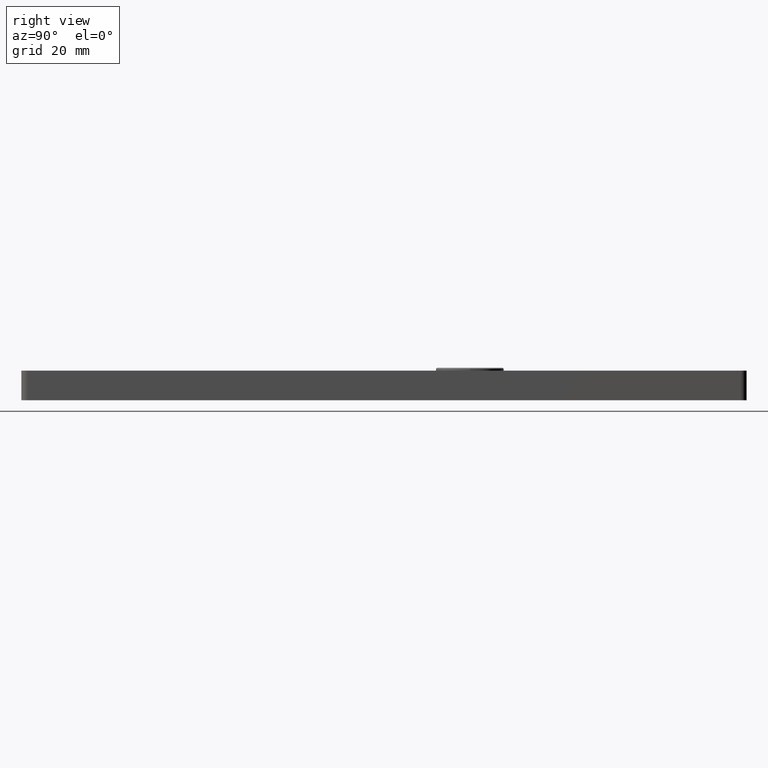
[diagram: clean part render]
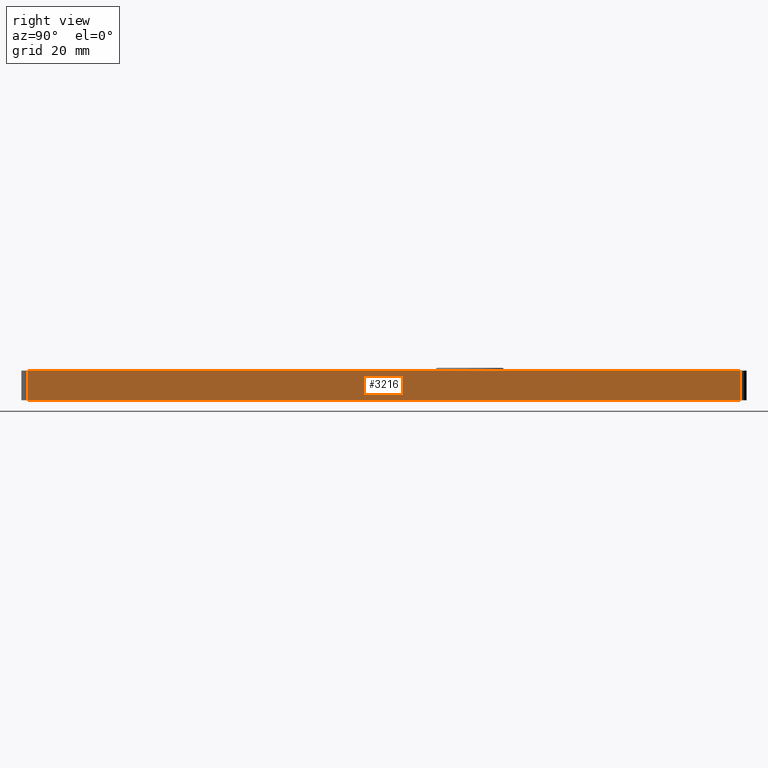
[diagram: same view with one face highlighted and labeled with its STEP entity id]
A machine part, right view. The second image highlights one B-rep face of the part: STEP entity #3216.
In plain terms, the highlighted planar face has unit normal (-1, 0, 0).
Its self-contained STEP definition (entity closure, byte-faithful):
#30 = VERTEX_POINT ( 'NONE', #8475 ) ;
#1073 = VECTOR ( 'NONE', #5414, 1000.000000000000000 ) ;
#1181 = EDGE_CURVE ( 'NONE', #2143, #7437, #1624, .T. ) ;
#1624 = LINE ( 'NONE', #6767, #7783 ) ;
#1676 = EDGE_CURVE ( 'NONE', #30, #2143, #7922, .T. ) ;
#1845 = VECTOR ( 'NONE', #3251, 1000.000000000000000 ) ;
#2143 = VERTEX_POINT ( 'NONE', #2316 ) ;
#2315 = PLANE ( 'NONE',  #10303 ) ;
#2316 = CARTESIAN_POINT ( 'NONE',  ( 15.00000000000002487, 120.5000000000000000, 0.000000000000000000 ) ) ;
#3022 = FACE_OUTER_BOUND ( 'NONE', #9334, .T. ) ;
#3216 = ADVANCED_FACE ( 'NONE', ( #3022 ), #2315, .F. ) ;
#3251 = DIRECTION ( 'NONE',  ( -0.000000000000000000, 1.000000000000000000, -0.000000000000000000 ) ) ;
#3339 = ORIENTED_EDGE ( 'NONE', *, *, #1676, .T. ) ;
#3644 = CARTESIAN_POINT ( 'NONE',  ( 15.00000000000002487, 122.5000000000000000, 0.000000000000000000 ) ) ;
#3972 = DIRECTION ( 'NONE',  ( -1.000000000000000000, 0.000000000000000000, 0.000000000000000000 ) ) ;
#4726 = CARTESIAN_POINT ( 'NONE',  ( 15.00000000000002487, 120.5000000000000000, 10.00000000000000000 ) ) ;
#5379 = ORIENTED_EDGE ( 'NONE', *, *, #9998, .F. ) ;
#5414 = DIRECTION ( 'NONE',  ( -0.000000000000000000, 1.000000000000000000, -0.000000000000000000 ) ) ;
#5817 = EDGE_CURVE ( 'NONE', #7065, #30, #7800, .T. ) ;
#5850 = CARTESIAN_POINT ( 'NONE',  ( 15.00000000000002487, 122.5000000000000000, 10.00000000000000000 ) ) ;
#5924 = DIRECTION ( 'NONE',  ( -0.000000000000000000, -0.000000000000000000, 1.000000000000000000 ) ) ;
#6349 = CARTESIAN_POINT ( 'NONE',  ( 15.00000000000002487, -120.5000000000000000, 10.00000000000000000 ) ) ;
#6767 = CARTESIAN_POINT ( 'NONE',  ( 15.00000000000002487, 120.5000000000000000, 10.00000000000000000 ) ) ;
#6870 = ORIENTED_EDGE ( 'NONE', *, *, #1181, .T. ) ;
#7065 = VERTEX_POINT ( 'NONE', #6349 ) ;
#7437 = VERTEX_POINT ( 'NONE', #4726 ) ;
#7475 = CARTESIAN_POINT ( 'NONE',  ( 15.00000000000002487, 122.5000000000000000, 10.00000000000000000 ) ) ;
#7706 = CARTESIAN_POINT ( 'NONE',  ( 15.00000000000002487, -120.5000000000000000, 10.00000000000000000 ) ) ;
#7783 = VECTOR ( 'NONE', #5924, 1000.000000000000000 ) ;
#7800 = LINE ( 'NONE', #7706, #8602 ) ;
#7922 = LINE ( 'NONE', #3644, #1073 ) ;
#8201 = DIRECTION ( 'NONE',  ( 0.000000000000000000, 0.000000000000000000, 1.000000000000000000 ) ) ;
#8475 = CARTESIAN_POINT ( 'NONE',  ( 15.00000000000002487, -120.5000000000000000, 0.000000000000000000 ) ) ;
#8602 = VECTOR ( 'NONE', #8757, 1000.000000000000000 ) ;
#8757 = DIRECTION ( 'NONE',  ( 0.000000000000000000, 0.000000000000000000, -1.000000000000000000 ) ) ;
#9334 = EDGE_LOOP ( 'NONE', ( #5379, #10784, #3339, #6870 ) ) ;
#9998 = EDGE_CURVE ( 'NONE', #7065, #7437, #10242, .T. ) ;
#10242 = LINE ( 'NONE', #7475, #1845 ) ;
#10303 = AXIS2_PLACEMENT_3D ( 'NONE', #5850, #3972, #8201 ) ;
#10784 = ORIENTED_EDGE ( 'NONE', *, *, #5817, .T. ) ;